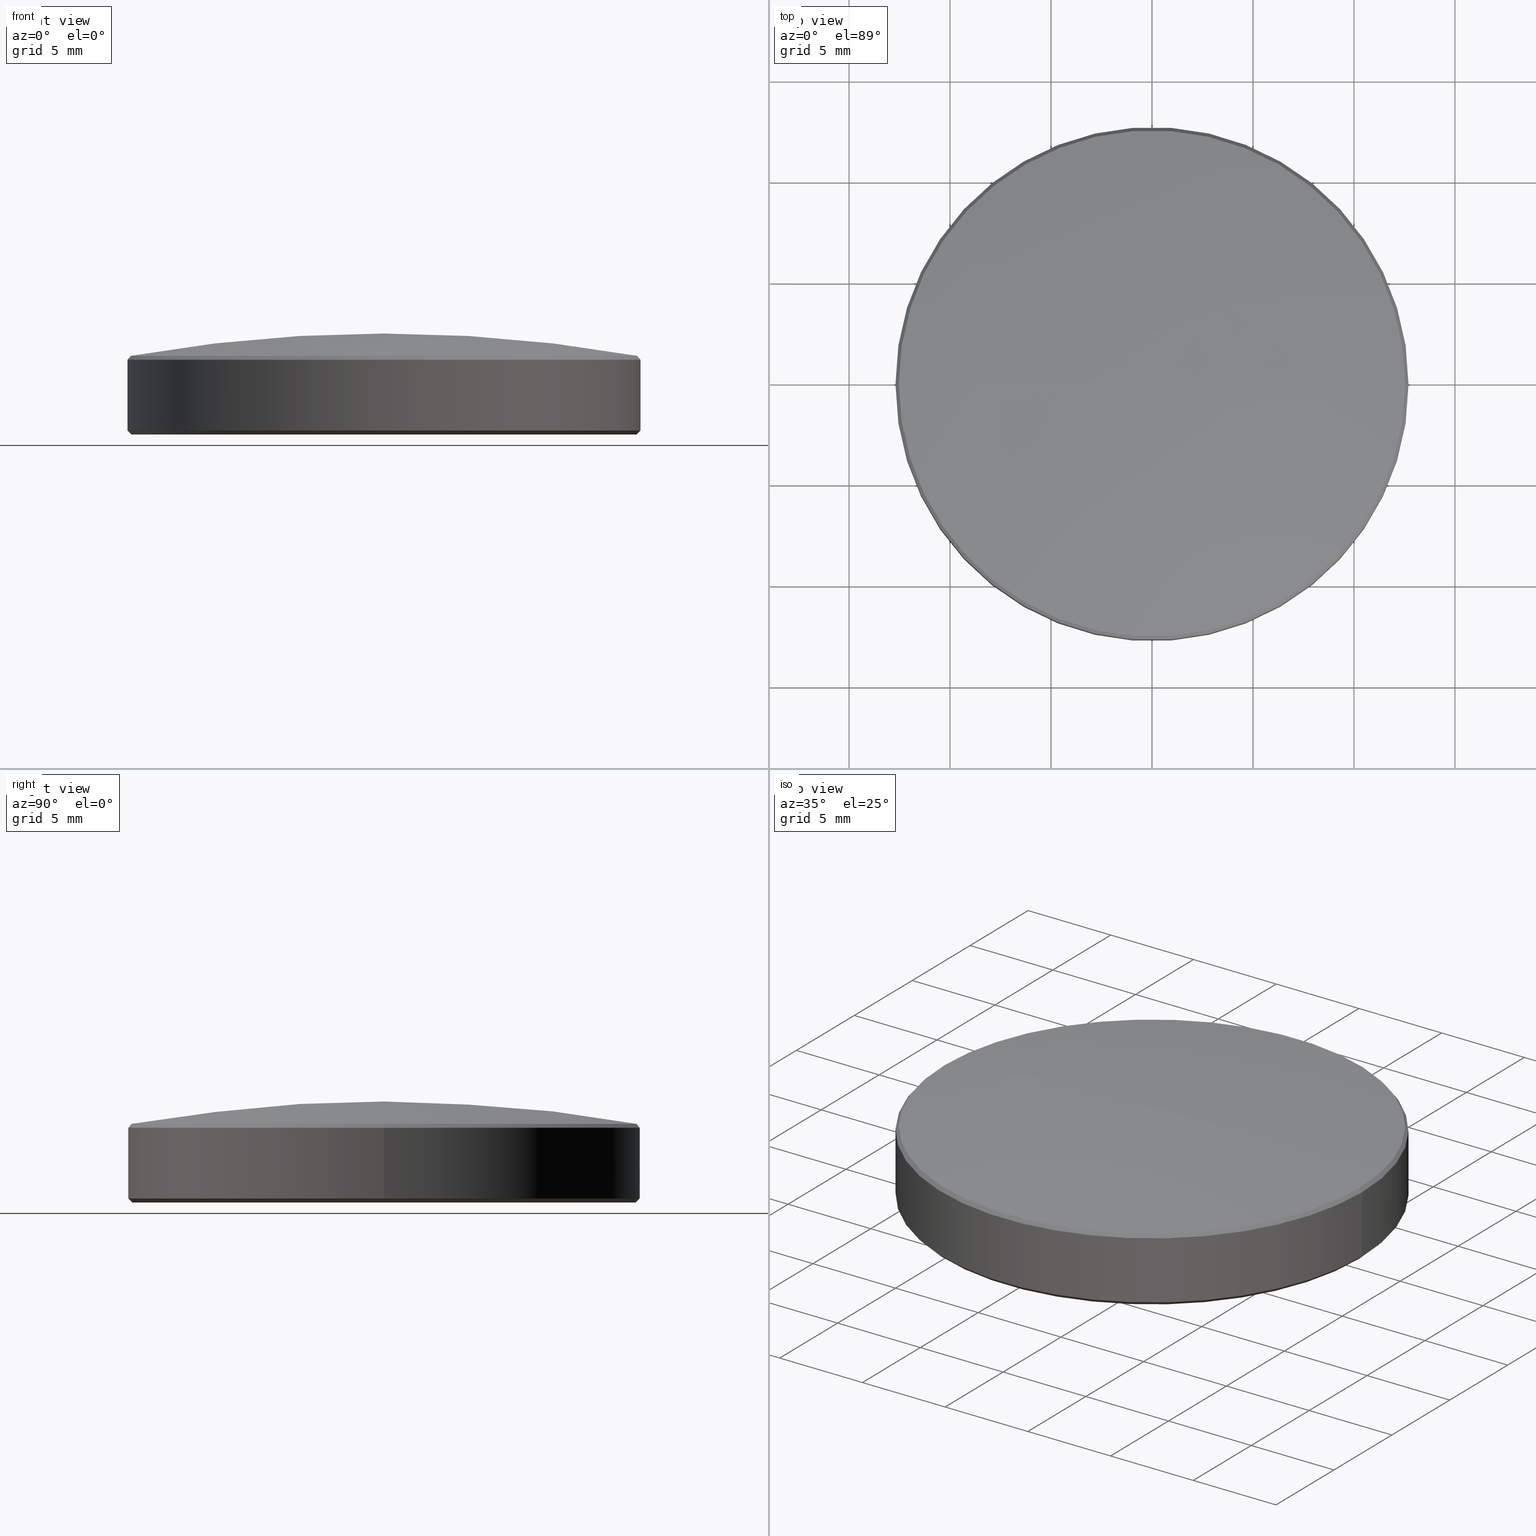
[diagram: canonical four-view strip — front | top / right | iso, engineering-drawing reading convention]
A machine part, canonical four-view strip (front | top / right | iso — engineering-drawing reading convention). The complete STEP part file that produces these views, byte-faithful:
ISO-10303-21;
HEADER;
FILE_DESCRIPTION (( 'STEP AP214' ),
    '1' );
FILE_NAME ('GL7AL1-025-050-IR1.STEP',
    '2024-07-21T09:24:51',
    ( '' ),
    ( '' ),
    'SwSTEP 2.0',
    'SolidWorks 2022',
    '' );
FILE_SCHEMA (( 'AUTOMOTIVE_DESIGN' ));
ENDSEC;

DATA;
#1 = ORIENTED_EDGE ( 'NONE', *, *, #107, .F. ) ;
#2 = EDGE_LOOP ( 'NONE', ( #124, #128 ) ) ;
#3 = CARTESIAN_POINT ( 'NONE',  ( 0.000000000000000000, 0.000000000000000000, 0.000000000000000000 ) ) ;
#4 = SPHERICAL_SURFACE ( 'NONE', #78, 71.65999999999999659 ) ;
#5 = ORIENTED_EDGE ( 'NONE', *, *, #52, .F. ) ;
#6 = ADVANCED_BREP_SHAPE_REPRESENTATION ( 'GL7AL1-025-050-IR1', ( #245, #140 ), #41 ) ;
#7 = EDGE_CURVE ( 'NONE', #37, #183, #20, .T. ) ;
#8 = DIRECTION ( 'NONE',  ( -0.000000000000000000, -0.000000000000000000, 1.000000000000000000 ) ) ;
#9 = CIRCLE ( 'NONE', #232, 71.65999999999999659 ) ;
#10 = CONICAL_SURFACE ( 'NONE', #119, 12.53498460677301729, 0.6974843652732920507 ) ;
#11 = DIRECTION ( 'NONE',  ( 0.000000000000000000, -1.000000000000000000, 0.000000000000000000 ) ) ;
#12 = FACE_OUTER_BOUND ( 'NONE', #38, .T. ) ;
#13 = MECHANICAL_DESIGN_GEOMETRIC_PRESENTATION_REPRESENTATION (  '', ( #146 ), #205 ) ;
#14 = CARTESIAN_POINT ( 'NONE',  ( 0.000000000000000000, 0.000000000000000000, -66.65999999999999659 ) ) ;
#15 =( LENGTH_UNIT ( ) NAMED_UNIT ( * ) SI_UNIT ( .MILLI., .METRE. ) );
#16 = EDGE_CURVE ( 'NONE', #231, #203, #152, .T. ) ;
#17 = SURFACE_STYLE_USAGE ( .BOTH. , #202 ) ;
#18 = ORIENTED_EDGE ( 'NONE', *, *, #225, .F. ) ;
#19 =( NAMED_UNIT ( * ) SI_UNIT ( $, .STERADIAN. ) SOLID_ANGLE_UNIT ( ) );
#20 = CIRCLE ( 'NONE', #241, 12.69999999999999929 ) ;
#21 = ORIENTED_EDGE ( 'NONE', *, *, #93, .T. ) ;
#22 = DIRECTION ( 'NONE',  ( 0.000000000000000000, 0.000000000000000000, -1.000000000000000000 ) ) ;
#23 = ORIENTED_EDGE ( 'NONE', *, *, #166, .F. ) ;
#24 = DIRECTION ( 'NONE',  ( -0.000000000000000000, -0.000000000000000000, -1.000000000000000000 ) ) ;
#25 = SHAPE_DEFINITION_REPRESENTATION ( #143, #6 ) ;
#26 = CARTESIAN_POINT ( 'NONE',  ( 0.000000000000000000, 0.000000000000000000, 3.698237612947643971 ) ) ;
#27 = EDGE_CURVE ( 'NONE', #231, #233, #219, .T. ) ;
#28 = ORIENTED_EDGE ( 'NONE', *, *, #7, .T. ) ;
#29 = SPHERICAL_SURFACE ( 'NONE', #210, 71.65999999999999659 ) ;
#30 = FACE_OUTER_BOUND ( 'NONE', #187, .T. ) ;
#31 = PRODUCT_DEFINITION_CONTEXT ( 'detailed design', #181, 'design' ) ;
#32 = FACE_OUTER_BOUND ( 'NONE', #131, .T. ) ;
#33 = CARTESIAN_POINT ( 'NONE',  ( 0.000000000000000000, 0.000000000000000000, -66.65999999999999659 ) ) ;
#34 = CIRCLE ( 'NONE', #145, 12.53498460677301907 ) ;
#35 = DIRECTION ( 'NONE',  ( -0.6422915872619319178, 0.000000000000000000, -0.7664603818414543746 ) ) ;
#36 = PRODUCT_RELATED_PRODUCT_CATEGORY ( 'part', '', ( #98 ) ) ;
#37 = VERTEX_POINT ( 'NONE', #116 ) ;
#38 = EDGE_LOOP ( 'NONE', ( #153, #63, #230 ) ) ;
#39 = VECTOR ( 'NONE', #177, 1000.000000000000000 ) ;
#40 = CIRCLE ( 'NONE', #75, 12.50000000000000178 ) ;
#41 =( GEOMETRIC_REPRESENTATION_CONTEXT ( 3 ) GLOBAL_UNCERTAINTY_ASSIGNED_CONTEXT ( ( #154 ) ) GLOBAL_UNIT_ASSIGNED_CONTEXT ( ( #204, #224, #19 ) ) REPRESENTATION_CONTEXT ( 'NONE', 'WORKASPACE' ) );
#42 = ORIENTED_EDGE ( 'NONE', *, *, #117, .T. ) ;
#43 = ORIENTED_EDGE ( 'NONE', *, *, #148, .F. ) ;
#44 = LINE ( 'NONE', #251, #53 ) ;
#45 = ORIENTED_EDGE ( 'NONE', *, *, #73, .T. ) ;
#46 = ORIENTED_EDGE ( 'NONE', *, *, #73, .F. ) ;
#47 = CARTESIAN_POINT ( 'NONE',  ( 12.50000000000000178, 0.000000000000000000, 0.000000000000000000 ) ) ;
#48 = DIRECTION ( 'NONE',  ( -1.224646799147353207E-16, 1.000000000000000000, 1.499759782661856513E-32 ) ) ;
#49 = LINE ( 'NONE', #144, #55 ) ;
#50 = DIRECTION ( 'NONE',  ( -1.000000000000000000, 0.000000000000000000, 0.000000000000000000 ) ) ;
#51 = DIRECTION ( 'NONE',  ( 1.000000000000000000, 0.000000000000000000, 0.000000000000000000 ) ) ;
#52 = EDGE_CURVE ( 'NONE', #233, #231, #40, .T. ) ;
#53 = VECTOR ( 'NONE', #67, 1000.000000000000000 ) ;
#54 = VERTEX_POINT ( 'NONE', #171 ) ;
#55 = VECTOR ( 'NONE', #35, 1000.000000000000227 ) ;
#56 =( NAMED_UNIT ( * ) PLANE_ANGLE_UNIT ( ) SI_UNIT ( $, .RADIAN. ) );
#57 = EDGE_LOOP ( 'NONE', ( #1, #80, #211, #208 ) ) ;
#58 = PRESENTATION_STYLE_ASSIGNMENT (( #17 ) ) ;
#59 = DIRECTION ( 'NONE',  ( -0.000000000000000000, -0.000000000000000000, 1.000000000000000000 ) ) ;
#60 = ADVANCED_FACE ( 'NONE', ( #189 ), #192, .T. ) ;
#61 = ADVANCED_FACE ( 'NONE', ( #207 ), #4, .T. ) ;
#62 = MECHANICAL_DESIGN_GEOMETRIC_PRESENTATION_REPRESENTATION (  '', ( #201 ), #237 ) ;
#63 = ORIENTED_EDGE ( 'NONE', *, *, #166, .T. ) ;
#64 = DIRECTION ( 'NONE',  ( 1.000000000000000000, 0.000000000000000000, 0.000000000000000000 ) ) ;
#65 = CARTESIAN_POINT ( 'NONE',  ( 12.69999999999999929, 0.000000000000000000, 0.1999999999999987899 ) ) ;
#66 = VECTOR ( 'NONE', #174, 1000.000000000000000 ) ;
#67 = DIRECTION ( 'NONE',  ( -0.7071067811865444641, 8.659560562354895880E-17, 0.7071067811865505703 ) ) ;
#68 = CYLINDRICAL_SURFACE ( 'NONE', #214, 12.69999999999999929 ) ;
#69 = CYLINDRICAL_SURFACE ( 'NONE', #188, 12.69999999999999929 ) ;
#70 = CARTESIAN_POINT ( 'NONE',  ( 0.000000000000000000, 0.000000000000000000, 3.698237612947643971 ) ) ;
#71 = AXIS2_PLACEMENT_3D ( 'NONE', #139, #8, #216 ) ;
#72 = CARTESIAN_POINT ( 'NONE',  ( 0.000000000000000000, 0.000000000000000000, 3.895154035038178364 ) ) ;
#73 = EDGE_CURVE ( 'NONE', #203, #54, #104, .T. ) ;
#74 = CARTESIAN_POINT ( 'NONE',  ( -12.69999999999999929, 0.000000000000000000, 3.879999999999999893 ) ) ;
#75 = AXIS2_PLACEMENT_3D ( 'NONE', #3, #86, #112 ) ;
#76 =( NAMED_UNIT ( * ) PLANE_ANGLE_UNIT ( ) SI_UNIT ( $, .RADIAN. ) );
#77 = ORIENTED_EDGE ( 'NONE', *, *, #16, .F. ) ;
#78 = AXIS2_PLACEMENT_3D ( 'NONE', #190, #209, #87 ) ;
#79 = DIRECTION ( 'NONE',  ( -1.000000000000000000, 0.000000000000000000, 0.000000000000000000 ) ) ;
#80 = ORIENTED_EDGE ( 'NONE', *, *, #106, .T. ) ;
#81 = ORIENTED_EDGE ( 'NONE', *, *, #137, .F. ) ;
#82 = EDGE_CURVE ( 'NONE', #233, #54, #44, .T. ) ;
#83 = VERTEX_POINT ( 'NONE', #92 ) ;
#84 = DIRECTION ( 'NONE',  ( 1.000000000000000000, 0.000000000000000000, 0.000000000000000000 ) ) ;
#85 = COLOUR_RGB ( '',1.000000000000000000, 1.000000000000000000, 1.000000000000000000 ) ;
#86 = DIRECTION ( 'NONE',  ( -0.000000000000000000, -0.000000000000000000, -1.000000000000000000 ) ) ;
#87 = DIRECTION ( 'NONE',  ( -1.000000000000000000, 0.000000000000000000, 1.936615658360934486E-16 ) ) ;
#88 = ORIENTED_EDGE ( 'NONE', *, *, #106, .F. ) ;
#89 = AXIS2_PLACEMENT_3D ( 'NONE', #249, #59, #226 ) ;
#90 = DIRECTION ( 'NONE',  ( 0.000000000000000000, 1.000000000000000000, -0.000000000000000000 ) ) ;
#91 = COLOUR_RGB ( '',1.000000000000000000, 1.000000000000000000, 1.000000000000000000 ) ;
#92 = CARTESIAN_POINT ( 'NONE',  ( 12.53498460677301729, 1.535092877604591061E-15, 3.895154035038178364 ) ) ;
#93 = EDGE_CURVE ( 'NONE', #135, #83, #9, .T. ) ;
#94 = CARTESIAN_POINT ( 'NONE',  ( -12.53498460677301729, 0.000000000000000000, 3.895154035038178364 ) ) ;
#95 = DIRECTION ( 'NONE',  ( 0.000000000000000000, 0.000000000000000000, -1.000000000000000000 ) ) ;
#96 = PRESENTATION_LAYER_ASSIGNMENT (  '', '', ( #146 ) ) ;
#97 = CARTESIAN_POINT ( 'NONE',  ( 12.69999999999999929, 1.555301434917138433E-15, 3.879999999999999893 ) ) ;
#98 = PRODUCT ( 'GL7AL1-025-050-IR1', 'GL7AL1-025-050-IR1', '', ( #109 ) ) ;
#99 = DIRECTION ( 'NONE',  ( -0.000000000000000000, -0.000000000000000000, -1.000000000000000000 ) ) ;
#100 = CONICAL_SURFACE ( 'NONE', #105, 12.69999999999999929, 0.7853981633974439491 ) ;
#101 = CARTESIAN_POINT ( 'NONE',  ( 0.000000000000000000, 0.000000000000000000, 0.000000000000000000 ) ) ;
#102 =( LENGTH_UNIT ( ) NAMED_UNIT ( * ) SI_UNIT ( .MILLI., .METRE. ) );
#103 = DIRECTION ( 'NONE',  ( -1.000000000000000000, 0.000000000000000000, 0.000000000000000000 ) ) ;
#104 = CIRCLE ( 'NONE', #129, 12.69999999999999929 ) ;
#105 = AXIS2_PLACEMENT_3D ( 'NONE', #179, #195, #218 ) ;
#106 = EDGE_CURVE ( 'NONE', #83, #37, #122, .T. ) ;
#107 = EDGE_CURVE ( 'NONE', #83, #170, #34, .T. ) ;
#108 = EDGE_LOOP ( 'NONE', ( #23, #21, #247 ) ) ;
#109 = PRODUCT_CONTEXT ( 'NONE', #113, 'mechanical' ) ;
#110 = EDGE_LOOP ( 'NONE', ( #88, #229, #173, #125 ) ) ;
#111 = AXIS2_PLACEMENT_3D ( 'NONE', #14, #11, #95 ) ;
#112 = DIRECTION ( 'NONE',  ( 1.000000000000000000, 0.000000000000000000, 0.000000000000000000 ) ) ;
#113 = APPLICATION_CONTEXT ( 'automotive_design' ) ;
#114 = DIRECTION ( 'NONE',  ( 0.000000000000000000, 0.000000000000000000, 1.000000000000000000 ) ) ;
#115 = DIRECTION ( 'NONE',  ( 1.000000000000000000, 0.000000000000000000, 0.000000000000000000 ) ) ;
#116 = CARTESIAN_POINT ( 'NONE',  ( 12.69999999999999929, 1.555301434917138433E-15, 3.698237612947643971 ) ) ;
#117 = EDGE_CURVE ( 'NONE', #183, #37, #252, .T. ) ;
#118 = DIRECTION ( 'NONE',  ( 1.000000000000000000, 0.000000000000000000, -0.000000000000000000 ) ) ;
#119 = AXIS2_PLACEMENT_3D ( 'NONE', #151, #223, #79 ) ;
#120 = CARTESIAN_POINT ( 'NONE',  ( -12.69999999999999929, 0.000000000000000000, 3.698237612947643971 ) ) ;
#121 = FACE_OUTER_BOUND ( 'NONE', #110, .T. ) ;
#122 = LINE ( 'NONE', #141, #266 ) ;
#123 = FILL_AREA_STYLE_COLOUR ( '', #85 ) ;
#124 = ORIENTED_EDGE ( 'NONE', *, *, #27, .T. ) ;
#125 = ORIENTED_EDGE ( 'NONE', *, *, #7, .F. ) ;
#126 = FACE_OUTER_BOUND ( 'NONE', #57, .T. ) ;
#127 = ADVANCED_FACE ( 'NONE', ( #12 ), #29, .T. ) ;
#128 = ORIENTED_EDGE ( 'NONE', *, *, #52, .T. ) ;
#129 = AXIS2_PLACEMENT_3D ( 'NONE', #250, #185, #176 ) ;
#130 = CIRCLE ( 'NONE', #150, 12.53498460677301907 ) ;
#131 = EDGE_LOOP ( 'NONE', ( #172, #136, #262, #43 ) ) ;
#132 = EDGE_LOOP ( 'NONE', ( #81, #28, #133, #156 ) ) ;
#133 = ORIENTED_EDGE ( 'NONE', *, *, #225, .T. ) ;
#134 = VECTOR ( 'NONE', #234, 1000.000000000000000 ) ;
#135 = VERTEX_POINT ( 'NONE', #197 ) ;
#136 = ORIENTED_EDGE ( 'NONE', *, *, #27, .F. ) ;
#137 = EDGE_CURVE ( 'NONE', #37, #203, #180, .T. ) ;
#138 = FILL_AREA_STYLE ('',( #161 ) ) ;
#139 = CARTESIAN_POINT ( 'NONE',  ( 0.000000000000000000, 0.000000000000000000, 0.1999999999999987899 ) ) ;
#140 = AXIS2_PLACEMENT_3D ( 'NONE', #101, #114, #84 ) ;
#141 = CARTESIAN_POINT ( 'NONE',  ( 12.53498460677301729, 1.535092877604592047E-15, 3.895154035038178364 ) ) ;
#142 = DIRECTION ( 'NONE',  ( -1.000000000000000000, 0.000000000000000000, 0.000000000000000000 ) ) ;
#143 = PRODUCT_DEFINITION_SHAPE ( 'NONE', 'NONE',  #265 ) ;
#144 = CARTESIAN_POINT ( 'NONE',  ( -12.53498460677301729, 0.000000000000000000, 3.895154035038178364 ) ) ;
#145 = AXIS2_PLACEMENT_3D ( 'NONE', #72, #162, #163 ) ;
#146 = STYLED_ITEM ( 'NONE', ( #167 ), #245 ) ;
#147 = CARTESIAN_POINT ( 'NONE',  ( 0.000000000000000000, 0.000000000000000000, 3.879999999999999893 ) ) ;
#148 = EDGE_CURVE ( 'NONE', #54, #203, #246, .T. ) ;
#149 =( NAMED_UNIT ( * ) SI_UNIT ( $, .STERADIAN. ) SOLID_ANGLE_UNIT ( ) );
#150 = AXIS2_PLACEMENT_3D ( 'NONE', #194, #164, #256 ) ;
#151 = CARTESIAN_POINT ( 'NONE',  ( 0.000000000000000000, 0.000000000000000000, 3.895154035038178364 ) ) ;
#152 = LINE ( 'NONE', #65, #66 ) ;
#153 = ORIENTED_EDGE ( 'NONE', *, *, #93, .F. ) ;
#154 = UNCERTAINTY_MEASURE_WITH_UNIT (LENGTH_MEASURE( 1.000000000000000082E-05 ), #204, 'distance_accuracy_value', 'NONE');
#155 = EDGE_LOOP ( 'NONE', ( #5, #248, #46, #77 ) ) ;
#156 = ORIENTED_EDGE ( 'NONE', *, *, #148, .T. ) ;
#157 = CLOSED_SHELL ( 'NONE', ( #263, #60, #61, #160, #255, #159, #127, #186, #215 ) ) ;
#158 = CARTESIAN_POINT ( 'NONE',  ( 0.000000000000000000, 0.000000000000000000, 0.000000000000000000 ) ) ;
#159 = ADVANCED_FACE ( 'NONE', ( #182 ), #220, .F. ) ;
#160 = ADVANCED_FACE ( 'NONE', ( #30 ), #69, .T. ) ;
#161 = FILL_AREA_STYLE_COLOUR ( '', #91 ) ;
#162 = DIRECTION ( 'NONE',  ( -0.000000000000000000, -0.000000000000000000, 1.000000000000000000 ) ) ;
#163 = DIRECTION ( 'NONE',  ( -1.000000000000000000, 0.000000000000000000, 0.000000000000000000 ) ) ;
#164 = DIRECTION ( 'NONE',  ( -0.000000000000000000, -0.000000000000000000, 1.000000000000000000 ) ) ;
#165 = CARTESIAN_POINT ( 'NONE',  ( -12.50000000000000178, 1.543054966925665273E-15, 0.000000000000000000 ) ) ;
#166 = EDGE_CURVE ( 'NONE', #135, #170, #222, .T. ) ;
#167 = PRESENTATION_STYLE_ASSIGNMENT (( #243 ) ) ;
#168 = SURFACE_STYLE_FILL_AREA ( #138 ) ;
#169 = SURFACE_STYLE_FILL_AREA ( #261 ) ;
#170 = VERTEX_POINT ( 'NONE', #94 ) ;
#171 = CARTESIAN_POINT ( 'NONE',  ( -12.69999999999999929, 0.000000000000000000, 0.1999999999999987899 ) ) ;
#172 = ORIENTED_EDGE ( 'NONE', *, *, #82, .F. ) ;
#173 = ORIENTED_EDGE ( 'NONE', *, *, #235, .T. ) ;
#174 = DIRECTION ( 'NONE',  ( 0.7071067811865444641, 0.000000000000000000, 0.7071067811865505703 ) ) ;
#175 = EDGE_CURVE ( 'NONE', #170, #83, #130, .T. ) ;
#176 = DIRECTION ( 'NONE',  ( 1.000000000000000000, 0.000000000000000000, 0.000000000000000000 ) ) ;
#177 = DIRECTION ( 'NONE',  ( -0.000000000000000000, -0.000000000000000000, -1.000000000000000000 ) ) ;
#178 = DIRECTION ( 'NONE',  ( -1.000000000000000000, 0.000000000000000000, 1.936615658360934486E-16 ) ) ;
#179 = CARTESIAN_POINT ( 'NONE',  ( 0.000000000000000000, 0.000000000000000000, 0.1999999999999987899 ) ) ;
#180 = LINE ( 'NONE', #97, #39 ) ;
#181 = APPLICATION_CONTEXT ( 'automotive_design' ) ;
#182 = FACE_OUTER_BOUND ( 'NONE', #2, .T. ) ;
#183 = VERTEX_POINT ( 'NONE', #120 ) ;
#184 = AXIS2_PLACEMENT_3D ( 'NONE', #70, #213, #51 ) ;
#185 = DIRECTION ( 'NONE',  ( -0.000000000000000000, -0.000000000000000000, 1.000000000000000000 ) ) ;
#186 = ADVANCED_FACE ( 'NONE', ( #32 ), #100, .T. ) ;
#187 = EDGE_LOOP ( 'NONE', ( #42, #212, #45, #18 ) ) ;
#188 = AXIS2_PLACEMENT_3D ( 'NONE', #217, #240, #142 ) ;
#189 = FACE_OUTER_BOUND ( 'NONE', #155, .T. ) ;
#190 = CARTESIAN_POINT ( 'NONE',  ( 0.000000000000000000, 0.000000000000000000, -66.65999999999999659 ) ) ;
#191 = CARTESIAN_POINT ( 'NONE',  ( 0.000000000000000000, 0.000000000000000000, -66.65999999999999659 ) ) ;
#192 = CONICAL_SURFACE ( 'NONE', #89, 12.69999999999999929, 0.7853981633974439491 ) ;
#193 = CONICAL_SURFACE ( 'NONE', #253, 12.53498460677301729, 0.6974843652732920507 ) ;
#194 = CARTESIAN_POINT ( 'NONE',  ( 0.000000000000000000, 0.000000000000000000, 3.895154035038178364 ) ) ;
#195 = DIRECTION ( 'NONE',  ( -0.000000000000000000, -0.000000000000000000, 1.000000000000000000 ) ) ;
#196 = UNCERTAINTY_MEASURE_WITH_UNIT (LENGTH_MEASURE( 1.000000000000000082E-05 ), #102, 'distance_accuracy_value', 'NONE');
#197 = CARTESIAN_POINT ( 'NONE',  ( 4.387909481344959759E-15, 0.000000000000000000, 5.000000000000004441 ) ) ;
#198 = AXIS2_PLACEMENT_3D ( 'NONE', #158, #24, #115 ) ;
#199 = CARTESIAN_POINT ( 'NONE',  ( 0.000000000000000000, 0.000000000000000000, 0.000000000000000000 ) ) ;
#200 =( NAMED_UNIT ( * ) SI_UNIT ( $, .STERADIAN. ) SOLID_ANGLE_UNIT ( ) );
#201 = STYLED_ITEM ( 'NONE', ( #58 ), #6 ) ;
#202 = SURFACE_SIDE_STYLE ('',( #169 ) ) ;
#203 = VERTEX_POINT ( 'NONE', #239 ) ;
#204 =( LENGTH_UNIT ( ) NAMED_UNIT ( * ) SI_UNIT ( .MILLI., .METRE. ) );
#205 =( GEOMETRIC_REPRESENTATION_CONTEXT ( 3 ) GLOBAL_UNCERTAINTY_ASSIGNED_CONTEXT ( ( #228 ) ) GLOBAL_UNIT_ASSIGNED_CONTEXT ( ( #15, #56, #149 ) ) REPRESENTATION_CONTEXT ( 'NONE', 'WORKASPACE' ) );
#206 = APPLICATION_PROTOCOL_DEFINITION ( 'draft international standard', 'automotive_design', 1998, #181 ) ;
#207 = FACE_OUTER_BOUND ( 'NONE', #108, .T. ) ;
#208 = ORIENTED_EDGE ( 'NONE', *, *, #235, .F. ) ;
#209 = DIRECTION ( 'NONE',  ( 0.000000000000000000, 1.000000000000000000, -0.000000000000000000 ) ) ;
#210 = AXIS2_PLACEMENT_3D ( 'NONE', #33, #90, #178 ) ;
#211 = ORIENTED_EDGE ( 'NONE', *, *, #117, .F. ) ;
#212 = ORIENTED_EDGE ( 'NONE', *, *, #137, .T. ) ;
#213 = DIRECTION ( 'NONE',  ( 0.000000000000000000, 0.000000000000000000, -1.000000000000000000 ) ) ;
#214 = AXIS2_PLACEMENT_3D ( 'NONE', #147, #99, #103 ) ;
#215 = ADVANCED_FACE ( 'NONE', ( #121 ), #193, .T. ) ;
#216 = DIRECTION ( 'NONE',  ( 1.000000000000000000, 0.000000000000000000, 0.000000000000000000 ) ) ;
#217 = CARTESIAN_POINT ( 'NONE',  ( 0.000000000000000000, 0.000000000000000000, 3.879999999999999893 ) ) ;
#218 = DIRECTION ( 'NONE',  ( 1.000000000000000000, 0.000000000000000000, 0.000000000000000000 ) ) ;
#219 = CIRCLE ( 'NONE', #198, 12.50000000000000178 ) ;
#220 = PLANE ( 'NONE',  #242 ) ;
#221 = APPLICATION_PROTOCOL_DEFINITION ( 'draft international standard', 'automotive_design', 1998, #113 ) ;
#222 = CIRCLE ( 'NONE', #111, 71.65999999999999659 ) ;
#223 = DIRECTION ( 'NONE',  ( 0.000000000000000000, 0.000000000000000000, -1.000000000000000000 ) ) ;
#224 =( NAMED_UNIT ( * ) PLANE_ANGLE_UNIT ( ) SI_UNIT ( $, .RADIAN. ) );
#225 = EDGE_CURVE ( 'NONE', #183, #54, #257, .T. ) ;
#226 = DIRECTION ( 'NONE',  ( 1.000000000000000000, 0.000000000000000000, 0.000000000000000000 ) ) ;
#227 = PRODUCT_DEFINITION_FORMATION_WITH_SPECIFIED_SOURCE ( '�κ�', '', #98, .NOT_KNOWN. ) ;
#228 = UNCERTAINTY_MEASURE_WITH_UNIT (LENGTH_MEASURE( 1.000000000000000082E-05 ), #15, 'distance_accuracy_value', 'NONE');
#229 = ORIENTED_EDGE ( 'NONE', *, *, #175, .F. ) ;
#230 = ORIENTED_EDGE ( 'NONE', *, *, #175, .T. ) ;
#231 = VERTEX_POINT ( 'NONE', #47 ) ;
#232 = AXIS2_PLACEMENT_3D ( 'NONE', #191, #48, #258 ) ;
#233 = VERTEX_POINT ( 'NONE', #165 ) ;
#234 = DIRECTION ( 'NONE',  ( -0.000000000000000000, -0.000000000000000000, -1.000000000000000000 ) ) ;
#235 = EDGE_CURVE ( 'NONE', #170, #183, #49, .T. ) ;
#236 = DIRECTION ( 'NONE',  ( 0.6422915872619319178, 7.865803364595977467E-17, -0.7664603818414543746 ) ) ;
#237 =( GEOMETRIC_REPRESENTATION_CONTEXT ( 3 ) GLOBAL_UNCERTAINTY_ASSIGNED_CONTEXT ( ( #196 ) ) GLOBAL_UNIT_ASSIGNED_CONTEXT ( ( #102, #76, #200 ) ) REPRESENTATION_CONTEXT ( 'NONE', 'WORKASPACE' ) );
#238 = CARTESIAN_POINT ( 'NONE',  ( 0.000000000000000000, 0.000000000000000000, 3.895154035038178364 ) ) ;
#239 = CARTESIAN_POINT ( 'NONE',  ( 12.69999999999999929, 1.555301434917138433E-15, 0.1999999999999987899 ) ) ;
#240 = DIRECTION ( 'NONE',  ( -0.000000000000000000, -0.000000000000000000, -1.000000000000000000 ) ) ;
#241 = AXIS2_PLACEMENT_3D ( 'NONE', #26, #22, #64 ) ;
#242 = AXIS2_PLACEMENT_3D ( 'NONE', #199, #254, #118 ) ;
#243 = SURFACE_STYLE_USAGE ( .BOTH. , #264 ) ;
#244 = FACE_OUTER_BOUND ( 'NONE', #132, .T. ) ;
#245 = MANIFOLD_SOLID_BREP ( '����2', #157 ) ;
#246 = CIRCLE ( 'NONE', #71, 12.69999999999999929 ) ;
#247 = ORIENTED_EDGE ( 'NONE', *, *, #107, .T. ) ;
#248 = ORIENTED_EDGE ( 'NONE', *, *, #82, .T. ) ;
#249 = CARTESIAN_POINT ( 'NONE',  ( 0.000000000000000000, 0.000000000000000000, 0.1999999999999987899 ) ) ;
#250 = CARTESIAN_POINT ( 'NONE',  ( 0.000000000000000000, 0.000000000000000000, 0.1999999999999987899 ) ) ;
#251 = CARTESIAN_POINT ( 'NONE',  ( -12.69999999999999929, 1.555301434917138433E-15, 0.1999999999999987899 ) ) ;
#252 = CIRCLE ( 'NONE', #184, 12.69999999999999929 ) ;
#253 = AXIS2_PLACEMENT_3D ( 'NONE', #238, #259, #50 ) ;
#254 = DIRECTION ( 'NONE',  ( 0.000000000000000000, 0.000000000000000000, 1.000000000000000000 ) ) ;
#255 = ADVANCED_FACE ( 'NONE', ( #244 ), #68, .T. ) ;
#256 = DIRECTION ( 'NONE',  ( -1.000000000000000000, 0.000000000000000000, 0.000000000000000000 ) ) ;
#257 = LINE ( 'NONE', #74, #134 ) ;
#258 = DIRECTION ( 'NONE',  ( -1.000000000000000000, -1.224646799147353454E-16, 0.000000000000000000 ) ) ;
#259 = DIRECTION ( 'NONE',  ( 0.000000000000000000, 0.000000000000000000, -1.000000000000000000 ) ) ;
#260 = PRESENTATION_LAYER_ASSIGNMENT (  '', '', ( #201 ) ) ;
#261 = FILL_AREA_STYLE ('',( #123 ) ) ;
#262 = ORIENTED_EDGE ( 'NONE', *, *, #16, .T. ) ;
#263 = ADVANCED_FACE ( 'NONE', ( #126 ), #10, .T. ) ;
#264 = SURFACE_SIDE_STYLE ('',( #168 ) ) ;
#265 = PRODUCT_DEFINITION ( 'δ֪', '', #227, #31 ) ;
#266 = VECTOR ( 'NONE', #236, 1000.000000000000227 ) ;
ENDSEC;
END-ISO-10303-21;
